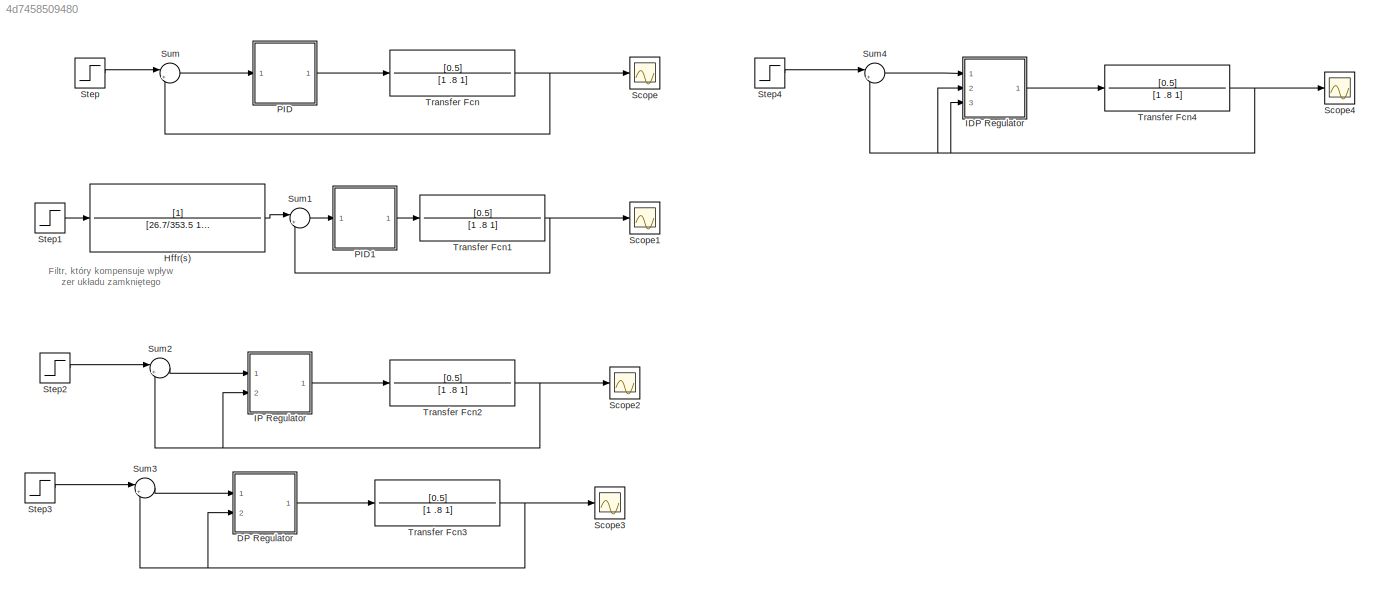
MODEL slx_4d7458509480
KIND model
CONFIG AbsTol = auto
CONFIG EnableMultiTasking = off
CONFIG FixedStep = auto
CONFIG MaxStep = auto
CONFIG MinStep = auto
CONFIG RelTol = 1e-3
CONFIG SampleTimeConstraint = Unconstrained
CONFIG Solver = VariableStepAuto
CONFIG SolverName = VariableStepAuto
CONFIG StartTime = 0.0
CONFIG StopTime = 20.0
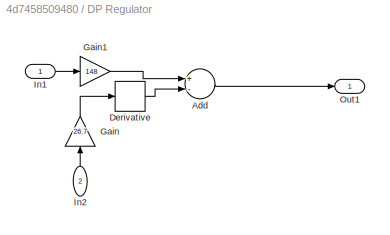
BLOCK [SubSystem] DP Regulator
  Ports = [2, 1]
  RequestExecContextInheritance = off
BLOCK [Sum] DP Regulator/Add
  InputSameDT = off
  Inputs = +-
  OutDataTypeStr = Inherit: Inherit via internal rule
  Ports = [2, 1]
  SaturateOnIntegerOverflow = off
BLOCK [Derivative] DP Regulator/Derivative
BLOCK [Gain] DP Regulator/Gain
  Gain = 26.7
  OutDataTypeStr = Inherit: Inherit via internal rule
  ParamDataTypeStr = Inherit: Inherit via internal rule
  SaturateOnIntegerOverflow = off
BLOCK [Gain] DP Regulator/Gain1
  Gain = 148
  OutDataTypeStr = Inherit: Inherit via internal rule
  ParamDataTypeStr = Inherit: Inherit via internal rule
  SaturateOnIntegerOverflow = off
BLOCK [Inport] DP Regulator/In1
  IconDisplay = Port number
BLOCK [Inport] DP Regulator/In2
  IconDisplay = Port number
  Port = 2
BLOCK [Outport] DP Regulator/Out1
  IconDisplay = Port number
BLOCK [TransferFcn] Hffr(s)
  Denominator = [26.7/353.5 148/353.5 1]
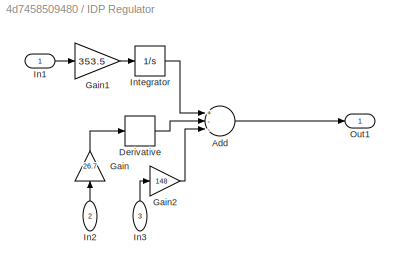
BLOCK [SubSystem] IDP Regulator
  Ports = [3, 1]
  RequestExecContextInheritance = off
BLOCK [Sum] IDP Regulator/Add
  InputSameDT = off
  Inputs = +--
  OutDataTypeStr = Inherit: Inherit via internal rule
  Ports = [3, 1]
  SaturateOnIntegerOverflow = off
BLOCK [Derivative] IDP Regulator/Derivative
BLOCK [Gain] IDP Regulator/Gain
  Gain = 26.7
  OutDataTypeStr = Inherit: Inherit via internal rule
  ParamDataTypeStr = Inherit: Inherit via internal rule
  SaturateOnIntegerOverflow = off
BLOCK [Gain] IDP Regulator/Gain1
  Gain = 353.5
  OutDataTypeStr = Inherit: Inherit via internal rule
  ParamDataTypeStr = Inherit: Inherit via internal rule
  SaturateOnIntegerOverflow = off
BLOCK [Gain] IDP Regulator/Gain2
  Gain = 148
  OutDataTypeStr = Inherit: Inherit via internal rule
  ParamDataTypeStr = Inherit: Inherit via internal rule
  SaturateOnIntegerOverflow = off
BLOCK [Inport] IDP Regulator/In1
  IconDisplay = Port number
BLOCK [Inport] IDP Regulator/In2
  IconDisplay = Port number
  Port = 2
BLOCK [Inport] IDP Regulator/In3
  IconDisplay = Port number
  Port = 3
BLOCK [Integrator] IDP Regulator/Integrator
  Ports = [1, 1]
BLOCK [Outport] IDP Regulator/Out1
  IconDisplay = Port number
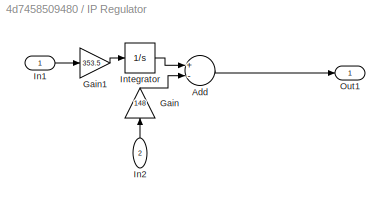
BLOCK [SubSystem] IP Regulator
  Ports = [2, 1]
  RequestExecContextInheritance = off
BLOCK [Sum] IP Regulator/Add
  InputSameDT = off
  Inputs = +-
  OutDataTypeStr = Inherit: Inherit via internal rule
  Ports = [2, 1]
  SaturateOnIntegerOverflow = off
BLOCK [Gain] IP Regulator/Gain
  Gain = 148
  OutDataTypeStr = Inherit: Inherit via internal rule
  ParamDataTypeStr = Inherit: Inherit via internal rule
  SaturateOnIntegerOverflow = off
BLOCK [Gain] IP Regulator/Gain1
  Gain = 353.5
  OutDataTypeStr = Inherit: Inherit via internal rule
  ParamDataTypeStr = Inherit: Inherit via internal rule
  SaturateOnIntegerOverflow = off
BLOCK [Inport] IP Regulator/In1
  IconDisplay = Port number
BLOCK [Inport] IP Regulator/In2
  IconDisplay = Port number
  Port = 2
BLOCK [Integrator] IP Regulator/Integrator
  Ports = [1, 1]
BLOCK [Outport] IP Regulator/Out1
  IconDisplay = Port number
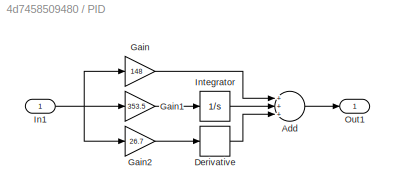
BLOCK [SubSystem] PID
  Ports = [1, 1]
  RequestExecContextInheritance = off
BLOCK [Sum] PID/Add
  InputSameDT = off
  Inputs = +++
  OutDataTypeStr = Inherit: Inherit via internal rule
  Ports = [3, 1]
  SaturateOnIntegerOverflow = off
BLOCK [Derivative] PID/Derivative
BLOCK [Gain] PID/Gain
  Gain = 148
  OutDataTypeStr = Inherit: Inherit via internal rule
  ParamDataTypeStr = Inherit: Inherit via internal rule
  SaturateOnIntegerOverflow = off
BLOCK [Gain] PID/Gain1
  Gain = 353.5
  OutDataTypeStr = Inherit: Inherit via internal rule
  ParamDataTypeStr = Inherit: Inherit via internal rule
  SaturateOnIntegerOverflow = off
BLOCK [Gain] PID/Gain2
  Gain = 26.7
  OutDataTypeStr = Inherit: Inherit via internal rule
  ParamDataTypeStr = Inherit: Inherit via internal rule
  SaturateOnIntegerOverflow = off
BLOCK [Inport] PID/In1
  IconDisplay = Port number
BLOCK [Integrator] PID/Integrator
  Ports = [1, 1]
BLOCK [Outport] PID/Out1
  IconDisplay = Port number
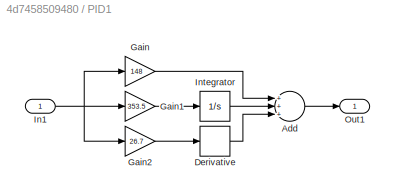
BLOCK [SubSystem] PID1
  Ports = [1, 1]
  RequestExecContextInheritance = off
BLOCK [Sum] PID1/Add
  InputSameDT = off
  Inputs = +++
  OutDataTypeStr = Inherit: Inherit via internal rule
  Ports = [3, 1]
  SaturateOnIntegerOverflow = off
BLOCK [Derivative] PID1/Derivative
BLOCK [Gain] PID1/Gain
  Gain = 148
  OutDataTypeStr = Inherit: Inherit via internal rule
  ParamDataTypeStr = Inherit: Inherit via internal rule
  SaturateOnIntegerOverflow = off
BLOCK [Gain] PID1/Gain1
  Gain = 353.5
  OutDataTypeStr = Inherit: Inherit via internal rule
  ParamDataTypeStr = Inherit: Inherit via internal rule
  SaturateOnIntegerOverflow = off
BLOCK [Gain] PID1/Gain2
  Gain = 26.7
  OutDataTypeStr = Inherit: Inherit via internal rule
  ParamDataTypeStr = Inherit: Inherit via internal rule
  SaturateOnIntegerOverflow = off
BLOCK [Inport] PID1/In1
  IconDisplay = Port number
BLOCK [Integrator] PID1/Integrator
  Ports = [1, 1]
BLOCK [Outport] PID1/Out1
  IconDisplay = Port number
BLOCK [Scope] Scope
  Floating = off
  NumInputPorts = 1
  Ports = [1]
  ScopeSpecificationString = Simulink.scopes.TimeScopeBlockCfg('CurrentConfiguration', extmgr.ConfigurationSet(extmgr.Configuration('Core','General UI',true),extmgr.Configuration('Core','Source UI',true),extmgr.Configuration('Sources','WiredSimulink',true),extmgr.Configuration('Visuals','Time Domain',true,'SerializedDisplays',{struct('MinYLimReal','-0.15954','MaxYLimReal','1.43587','YLabelReal','','MinYLimMag','0.00000','MaxY...<+1332ch>
BLOCK [Scope] Scope1
  Floating = off
  NumInputPorts = 1
  Ports = [1]
  ScopeSpecificationString = Simulink.scopes.TimeScopeBlockCfg('CurrentConfiguration', extmgr.ConfigurationSet(extmgr.Configuration('Core','General UI',true),extmgr.Configuration('Core','Source UI',true),extmgr.Configuration('Sources','WiredSimulink',true,'DataLoggingVariableName','ScopeData1'),extmgr.Configuration('Visuals','Time Domain',true,'SerializedDisplays',{struct('MinYLimReal','-0.12828','MaxYLimReal','1.15454','YLab...<+1372ch>
BLOCK [Scope] Scope2
  Floating = off
  NumInputPorts = 1
  Ports = [1]
  ScopeSpecificationString = Simulink.scopes.TimeScopeBlockCfg('CurrentConfiguration', extmgr.ConfigurationSet(extmgr.Configuration('Core','General UI',true),extmgr.Configuration('Core','Source UI',true),extmgr.Configuration('Sources','WiredSimulink',true,'DataLoggingVariableName','ScopeData2'),extmgr.Configuration('Visuals','Time Domain',true,'SerializedDisplays',{struct('MinYLimReal','-242517.68474','MaxYLimReal','306079.42...<+1435ch>
BLOCK [Scope] Scope3
  Floating = off
  NumInputPorts = 1
  Ports = [1]
  ScopeSpecificationString = Simulink.scopes.TimeScopeBlockCfg('CurrentConfiguration', extmgr.ConfigurationSet(extmgr.Configuration('Core','General UI',true),extmgr.Configuration('Core','Source UI',true),extmgr.Configuration('Sources','WiredSimulink',true,'DataLoggingVariableName','ScopeData3'),extmgr.Configuration('Visuals','Time Domain',true,'SerializedDisplays',{struct('MinYLimReal','-0.12333','MaxYLimReal','1.11','YLabelR...<+1385ch>
BLOCK [Scope] Scope4
  Floating = off
  NumInputPorts = 1
  Ports = [1]
  ScopeSpecificationString = Simulink.scopes.TimeScopeBlockCfg('CurrentConfiguration', extmgr.ConfigurationSet(extmgr.Configuration('Core','General UI',true),extmgr.Configuration('Core','Source UI',true),extmgr.Configuration('Sources','WiredSimulink',true,'DataLoggingVariableName','ScopeData4'),extmgr.Configuration('Visuals','Time Domain',true,'SerializedDisplays',{struct('MinYLimReal','-0.12827','MaxYLimReal','1.15442','YLab...<+1397ch>
BLOCK [Step] Step
  SampleTime = 0
BLOCK [Step] Step1
  SampleTime = 0
BLOCK [Step] Step2
  SampleTime = 0
BLOCK [Step] Step3
  SampleTime = 0
BLOCK [Step] Step4
  SampleTime = 0
BLOCK [Sum] Sum
  IconShape = round
  InputSameDT = off
  Inputs = |+-
  OutDataTypeStr = Inherit: Inherit via internal rule
  Ports = [2, 1]
  SaturateOnIntegerOverflow = off
BLOCK [Sum] Sum1
  IconShape = round
  InputSameDT = off
  Inputs = |+-
  OutDataTypeStr = Inherit: Inherit via internal rule
  Ports = [2, 1]
  SaturateOnIntegerOverflow = off
BLOCK [Sum] Sum2
  IconShape = round
  InputSameDT = off
  Inputs = |+-
  OutDataTypeStr = Inherit: Inherit via internal rule
  Ports = [2, 1]
  SaturateOnIntegerOverflow = off
BLOCK [Sum] Sum3
  IconShape = round
  InputSameDT = off
  Inputs = |+-
  OutDataTypeStr = Inherit: Inherit via internal rule
  Ports = [2, 1]
  SaturateOnIntegerOverflow = off
BLOCK [Sum] Sum4
  IconShape = round
  InputSameDT = off
  Inputs = |+-
  OutDataTypeStr = Inherit: Inherit via internal rule
  Ports = [2, 1]
  SaturateOnIntegerOverflow = off
BLOCK [TransferFcn] Transfer Fcn
  Denominator = [1 .8 1]
  Numerator = [0.5]
BLOCK [TransferFcn] Transfer Fcn1
  Denominator = [1 .8 1]
  Numerator = [0.5]
BLOCK [TransferFcn] Transfer Fcn2
  Denominator = [1 .8 1]
  Numerator = [0.5]
BLOCK [TransferFcn] Transfer Fcn3
  Denominator = [1 .8 1]
  Numerator = [0.5]
BLOCK [TransferFcn] Transfer Fcn4
  Denominator = [1 .8 1]
  Numerator = [0.5]
ANNOTATION (root): Filtr, który kompensuje wpływ zer układu zamkniętego
LINE DP Regulator/Add:1 -> DP Regulator/Out1:1
LINE DP Regulator/Derivative:1 -> DP Regulator/Add:2
LINE DP Regulator/Gain1:1 -> DP Regulator/Add:1
LINE DP Regulator/Gain:1 -> DP Regulator/Derivative:1
LINE DP Regulator/In1:1 -> DP Regulator/Gain1:1
LINE DP Regulator/In2:1 -> DP Regulator/Gain:1
LINE DP Regulator:1 -> Transfer Fcn3:1
LINE Hffr(s):1 -> Sum1:1
LINE IDP Regulator/Add:1 -> IDP Regulator/Out1:1
LINE IDP Regulator/Derivative:1 -> IDP Regulator/Add:2
LINE IDP Regulator/Gain1:1 -> IDP Regulator/Integrator:1
LINE IDP Regulator/Gain2:1 -> IDP Regulator/Add:3
LINE IDP Regulator/Gain:1 -> IDP Regulator/Derivative:1
LINE IDP Regulator/In1:1 -> IDP Regulator/Gain1:1
LINE IDP Regulator/In2:1 -> IDP Regulator/Gain:1
LINE IDP Regulator/In3:1 -> IDP Regulator/Gain2:1
LINE IDP Regulator/Integrator:1 -> IDP Regulator/Add:1
LINE IDP Regulator:1 -> Transfer Fcn4:1
LINE IP Regulator/Add:1 -> IP Regulator/Out1:1
LINE IP Regulator/Gain1:1 -> IP Regulator/Integrator:1
LINE IP Regulator/Gain:1 -> IP Regulator/Add:2
LINE IP Regulator/In1:1 -> IP Regulator/Gain1:1
LINE IP Regulator/In2:1 -> IP Regulator/Gain:1
LINE IP Regulator/Integrator:1 -> IP Regulator/Add:1
LINE IP Regulator:1 -> Transfer Fcn2:1
LINE PID/Add:1 -> PID/Out1:1
LINE PID/Derivative:1 -> PID/Add:3
LINE PID/Gain1:1 -> PID/Integrator:1
LINE PID/Gain2:1 -> PID/Derivative:1
LINE PID/Gain:1 -> PID/Add:1
NET PID/In1:1 -> PID/Gain1:1, PID/Gain2:1, PID/Gain:1
LINE PID/Integrator:1 -> PID/Add:2
LINE PID1/Add:1 -> PID1/Out1:1
LINE PID1/Derivative:1 -> PID1/Add:3
LINE PID1/Gain1:1 -> PID1/Integrator:1
LINE PID1/Gain2:1 -> PID1/Derivative:1
LINE PID1/Gain:1 -> PID1/Add:1
NET PID1/In1:1 -> PID1/Gain1:1, PID1/Gain2:1, PID1/Gain:1
LINE PID1/Integrator:1 -> PID1/Add:2
LINE PID1:1 -> Transfer Fcn1:1
LINE PID:1 -> Transfer Fcn:1
LINE Step1:1 -> Hffr(s):1
LINE Step2:1 -> Sum2:1
LINE Step3:1 -> Sum3:1
LINE Step4:1 -> Sum4:1
LINE Step:1 -> Sum:1
LINE Sum1:1 -> PID1:1
LINE Sum2:1 -> IP Regulator:1
LINE Sum3:1 -> DP Regulator:1
LINE Sum4:1 -> IDP Regulator:1
LINE Sum:1 -> PID:1
NET Transfer Fcn1:1 -> Scope1:1, Sum1:2
NET Transfer Fcn2:1 -> IP Regulator:2, Scope2:1, Sum2:2
NET Transfer Fcn3:1 -> DP Regulator:2, Scope3:1, Sum3:2
NET Transfer Fcn4:1 -> IDP Regulator:2, IDP Regulator:3, Scope4:1, Sum4:2
NET Transfer Fcn:1 -> Scope:1, Sum:2
note: NET lines group one-source signal fan-out (src -> all destinations, sorted); 1:1 wires keep LINE
